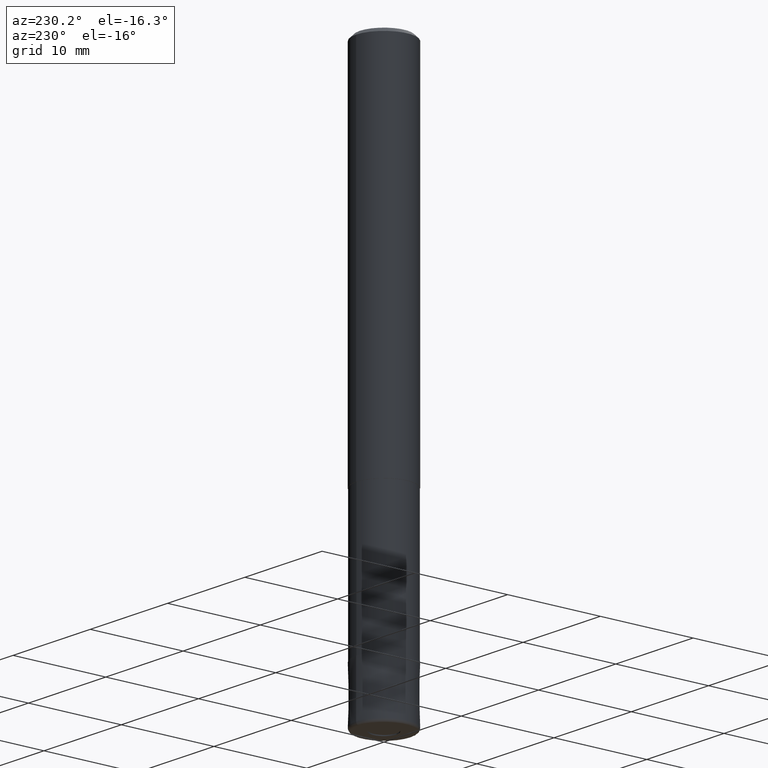
[diagram: clean part render]
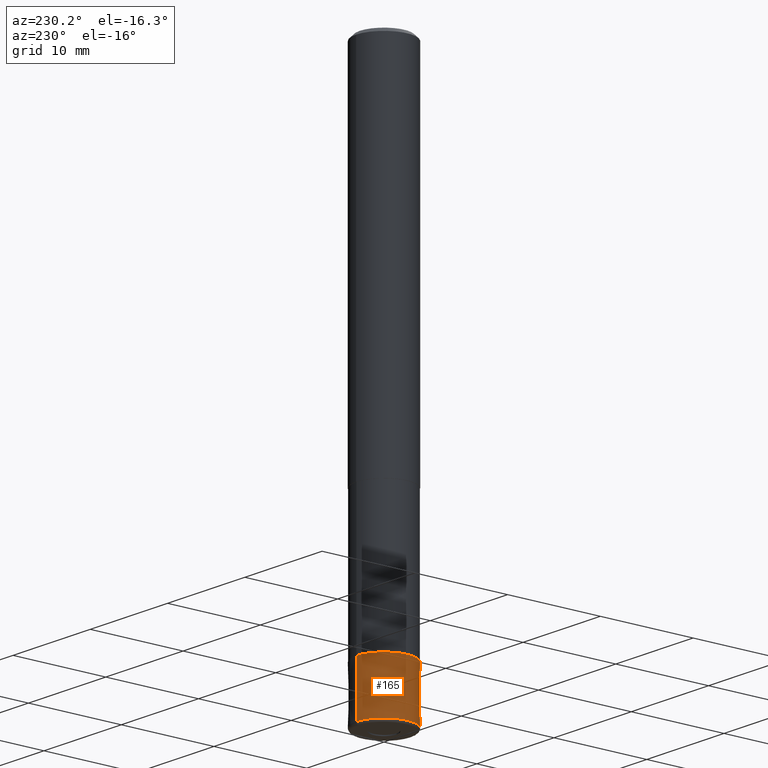
[diagram: same view with one face highlighted and labeled with its STEP entity id]
A machine part, auxiliary view. The second image highlights one B-rep face of the part: STEP entity #165.
In plain terms, the highlighted conical surface has half-angle 0.001 deg.
Its self-contained STEP definition (entity closure, byte-faithful):
#127=EDGE_CURVE('',#223,#143,#315,.T.);
#143=VERTEX_POINT('',#331);
#145=VERTEX_POINT('',#333);
#165=ADVANCED_FACE('',(#354),#355,.T.);
#195=EDGE_CURVE('',#143,#261,#390,.T.);
#223=VERTEX_POINT('',#423);
#255=EDGE_CURVE('',#145,#261,#460,.T.);
#261=VERTEX_POINT('',#468);
#263=EDGE_CURVE('',#145,#223,#470,.T.);
#315=CIRCLE('',#522,2.9999);
#331=CARTESIAN_POINT('',(0.0,2.9999,-54.0));
#333=CARTESIAN_POINT('',(3.67381906146713E-016,-3.0,-59.7));
#354=FACE_OUTER_BOUND('',#569,.T.);
#355=CONICAL_SURFACE('',#570,2.99995,1.75438596473599E-005);
#390=LINE('',#617,#618);
#423=CARTESIAN_POINT('',(3.67369660083175E-016,-2.9999,-54.0));
#460=CIRCLE('',#703,3.0);
#468=CARTESIAN_POINT('',(0.0,3.0,-59.7));
#470=LINE('',#716,#717);
#522=AXIS2_PLACEMENT_3D('',#759,#760,#761);
#569=EDGE_LOOP('',(#797,#798,#799,#800));
#570=AXIS2_PLACEMENT_3D('',#801,#802,#803);
#617=CARTESIAN_POINT('',(-3.67375783114944E-016,2.99995,-56.85));
#618=VECTOR('',#854,1.0);
#703=AXIS2_PLACEMENT_3D('',#945,#946,#947);
#716=CARTESIAN_POINT('',(3.67375783114944E-016,-2.99995,-56.85));
#717=VECTOR('',#957,1.0);
#759=CARTESIAN_POINT('',(0.0,0.0,-54.0));
#760=DIRECTION('',(0.0,0.0,-1.0));
#761=DIRECTION('',(0.0,1.0,0.0));
#797=ORIENTED_EDGE('',*,*,#195,.T.);
#798=ORIENTED_EDGE('',*,*,#255,.F.);
#799=ORIENTED_EDGE('',*,*,#263,.T.);
#800=ORIENTED_EDGE('',*,*,#127,.T.);
#801=CARTESIAN_POINT('',(0.0,0.0,-56.85));
#802=DIRECTION('',(0.0,-0.0,-1.0));
#803=DIRECTION('',(0.0,1.0,0.0));
#854=DIRECTION('',(-2.14843219936228E-021,1.75438596464599E-005,-0.999999999846107));
#945=CARTESIAN_POINT('',(0.0,0.0,-59.7));
#946=DIRECTION('',(0.0,0.0,-1.0));
#947=DIRECTION('',(0.0,1.0,0.0));
#957=DIRECTION('',(-2.14843219936229E-021,1.75438596464599E-005,0.999999999846107));